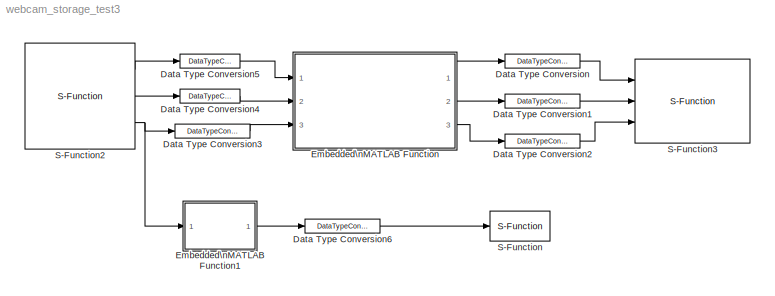
MODEL webcam_storage_test3
KIND model
BLOCK [DataTypeConversion] Data Type Conversion
  OutDataType = fixdt(1, 16)
  OutDataTypeMode = uint8
  OutDataTypeStr = uint8
  OutScaling = 2^0
  RndMeth = Floor
  SaturateOnIntegerOverflow = off
BLOCK [DataTypeConversion] Data Type Conversion1
  OutDataType = fixdt(1, 16)
  OutDataTypeMode = uint8
  OutDataTypeStr = uint8
  OutScaling = 2^0
  RndMeth = Floor
  SaturateOnIntegerOverflow = off
BLOCK [DataTypeConversion] Data Type Conversion2
  OutDataType = fixdt(1, 16)
  OutDataTypeMode = uint8
  OutDataTypeStr = uint8
  OutScaling = 2^0
  RndMeth = Floor
  SaturateOnIntegerOverflow = off
BLOCK [DataTypeConversion] Data Type Conversion3
  OutDataType = fixdt(1, 16)
  OutDataTypeMode = double
  OutDataTypeStr = double
  OutScaling = 2^0
  RndMeth = Floor
  SaturateOnIntegerOverflow = off
BLOCK [DataTypeConversion] Data Type Conversion4
  OutDataType = fixdt(1, 16)
  OutDataTypeMode = double
  OutDataTypeStr = double
  OutScaling = 2^0
  RndMeth = Floor
  SaturateOnIntegerOverflow = off
BLOCK [DataTypeConversion] Data Type Conversion5
  OutDataType = fixdt(1, 16)
  OutDataTypeMode = double
  OutDataTypeStr = double
  OutScaling = 2^0
  RndMeth = Floor
  SaturateOnIntegerOverflow = off
BLOCK [DataTypeConversion] Data Type Conversion6
  OutDataType = fixdt(1, 16)
  OutDataTypeMode = uint32
  OutDataTypeStr = uint32
  OutScaling = 2^0
  RndMeth = Floor
  SaturateOnIntegerOverflow = off
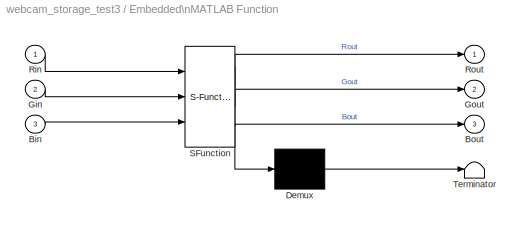
BLOCK [SubSystem] Embedded\nMATLAB Function
  FunctionWithSeparateData = off
  MaskDescription = Embedded MATLAB block
  MaskDisplay = disp('videoExport_format');
  MaskHideContents = off
  MaskIconFrame = on
  MaskIconOpaque = off
  MaskIconRotate = none
  MaskIconUnits = autoscale
  MaskPortRotate = default
  MaskSelfModifiable = on
  MaskType = Stateflow
  MinAlgLoopOccurrences = off
  Opaque = off
  PermitHierarchicalResolution = ExplicitOnly
  Ports = [3, 3]
  PropExecContextOutsideSubsystem = off
  RTWSystemCode = Auto
  RequestExecContextInheritance = off
BLOCK [Demux] Embedded\nMATLAB Function/ Demux 
  Outputs = 1
  Ports = [1, 1]
BLOCK [S-Function] Embedded\nMATLAB Function/ SFunction 
  EnableBusSupport = on
  FunctionName = sf_sfun
  PortCounts = [3 4]
  Ports = [3, 4]
  Tag = Stateflow S-Function webcam_storage_test3 2
BLOCK [Terminator] Embedded\nMATLAB Function/ Terminator 
BLOCK [Inport] Embedded\nMATLAB Function/Bin
  IconDisplay = Port number
  Port = 3
BLOCK [Outport] Embedded\nMATLAB Function/Bout
  IconDisplay = Port number
  Port = 3
BLOCK [Inport] Embedded\nMATLAB Function/Gin
  IconDisplay = Port number
  Port = 2
BLOCK [Outport] Embedded\nMATLAB Function/Gout
  IconDisplay = Port number
  Port = 2
BLOCK [Inport] Embedded\nMATLAB Function/Rin
  IconDisplay = Port number
  OutDataType = sfix(16)
  OutScaling = 2^0
BLOCK [Outport] Embedded\nMATLAB Function/Rout
  IconDisplay = Port number
  OutDataType = sfix(16)
  OutScaling = 2^0
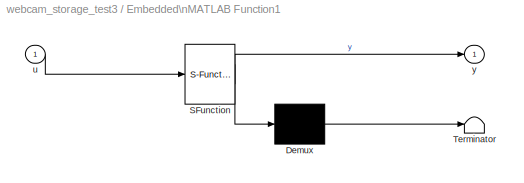
BLOCK [SubSystem] Embedded\nMATLAB Function1
  ErrorFcn = Stateflow.Translate.translate
  FunctionWithSeparateData = off
  MaskDescription = Embedded MATLAB block
  MaskDisplay = disp('fcn');
  MaskHideContents = off
  MaskIconFrame = on
  MaskIconOpaque = off
  MaskIconRotate = none
  MaskIconUnits = normalized
  MaskPortRotate = default
  MaskSelfModifiable = on
  MaskType = Stateflow
  MinAlgLoopOccurrences = off
  Opaque = off
  PermitHierarchicalResolution = ExplicitOnly
  Ports = [1, 1]
  PropExecContextOutsideSubsystem = off
  RTWSystemCode = Auto
  RequestExecContextInheritance = off
  TreatAsAtomicUnit = on
BLOCK [Demux] Embedded\nMATLAB Function1/ Demux 
  Outputs = 1
  Ports = [1, 1]
BLOCK [S-Function] Embedded\nMATLAB Function1/ SFunction 
  EnableBusSupport = on
  FunctionName = sf_sfun
  PortCounts = [1 2]
  Ports = [1, 2]
  Tag = Stateflow S-Function webcam_storage_test3 1
BLOCK [Terminator] Embedded\nMATLAB Function1/ Terminator 
BLOCK [Inport] Embedded\nMATLAB Function1/u
  IconDisplay = Port number
BLOCK [Outport] Embedded\nMATLAB Function1/y
  IconDisplay = Port number
BLOCK [S-Function] S-Function
  EnableBusSupport = off
  FunctionName = printOut
  Ports = [1]
BLOCK [S-Function] S-Function2
  EnableBusSupport = off
  FunctionName = WebcamTest
  Ports = [0, 3]
BLOCK [S-Function] S-Function3
  EnableBusSupport = off
  FunctionName = videoExport
  Ports = [3]
LINE Data Type Conversion1:1 -> S-Function3:2
LINE Data Type Conversion2:1 -> S-Function3:3
LINE Data Type Conversion3:1 -> Embedded\nMATLAB Function:3
LINE Data Type Conversion4:1 -> Embedded\nMATLAB Function:2
LINE Data Type Conversion5:1 -> Embedded\nMATLAB Function:1
LINE Data Type Conversion6:1 -> S-Function:1
LINE Data Type Conversion:1 -> S-Function3:1
LINE Embedded\nMATLAB Function/ Demux :1 -> Embedded\nMATLAB Function/ Terminator :1
LINE Embedded\nMATLAB Function/ SFunction :1 -> Embedded\nMATLAB Function/ Demux :1
LINE Embedded\nMATLAB Function/ SFunction :2 -> Embedded\nMATLAB Function/Rout:1
LINE Embedded\nMATLAB Function/ SFunction :3 -> Embedded\nMATLAB Function/Gout:1
LINE Embedded\nMATLAB Function/ SFunction :4 -> Embedded\nMATLAB Function/Bout:1
LINE Embedded\nMATLAB Function/Bin:1 -> Embedded\nMATLAB Function/ SFunction :3
LINE Embedded\nMATLAB Function/Gin:1 -> Embedded\nMATLAB Function/ SFunction :2
LINE Embedded\nMATLAB Function/Rin:1 -> Embedded\nMATLAB Function/ SFunction :1
LINE Embedded\nMATLAB Function1/ Demux :1 -> Embedded\nMATLAB Function1/ Terminator :1
LINE Embedded\nMATLAB Function1/ SFunction :1 -> Embedded\nMATLAB Function1/ Demux :1
LINE Embedded\nMATLAB Function1/ SFunction :2 -> Embedded\nMATLAB Function1/y:1
LINE Embedded\nMATLAB Function1/u:1 -> Embedded\nMATLAB Function1/ SFunction :1
LINE Embedded\nMATLAB Function1:1 -> Data Type Conversion6:1
LINE Embedded\nMATLAB Function:1 -> Data Type Conversion:1
LINE Embedded\nMATLAB Function:2 -> Data Type Conversion1:1
LINE Embedded\nMATLAB Function:3 -> Data Type Conversion2:1
LINE S-Function2:1 -> Data Type Conversion5:1
LINE S-Function2:2 -> Data Type Conversion4:1
NET S-Function2:3 -> Data Type Conversion3:1, Embedded\nMATLAB Function1:1
note: NET lines group one-source signal fan-out (src -> all destinations, sorted); 1:1 wires keep LINE
CHART Embedded\nMATLAB Function1 states=1 transitions=1
  STATE_LABEL 'eML_blk_kernel()'
CHART Embedded\nMATLAB Function states=1 transitions=1
  STATE_LABEL 'eML_blk_kernel()'
